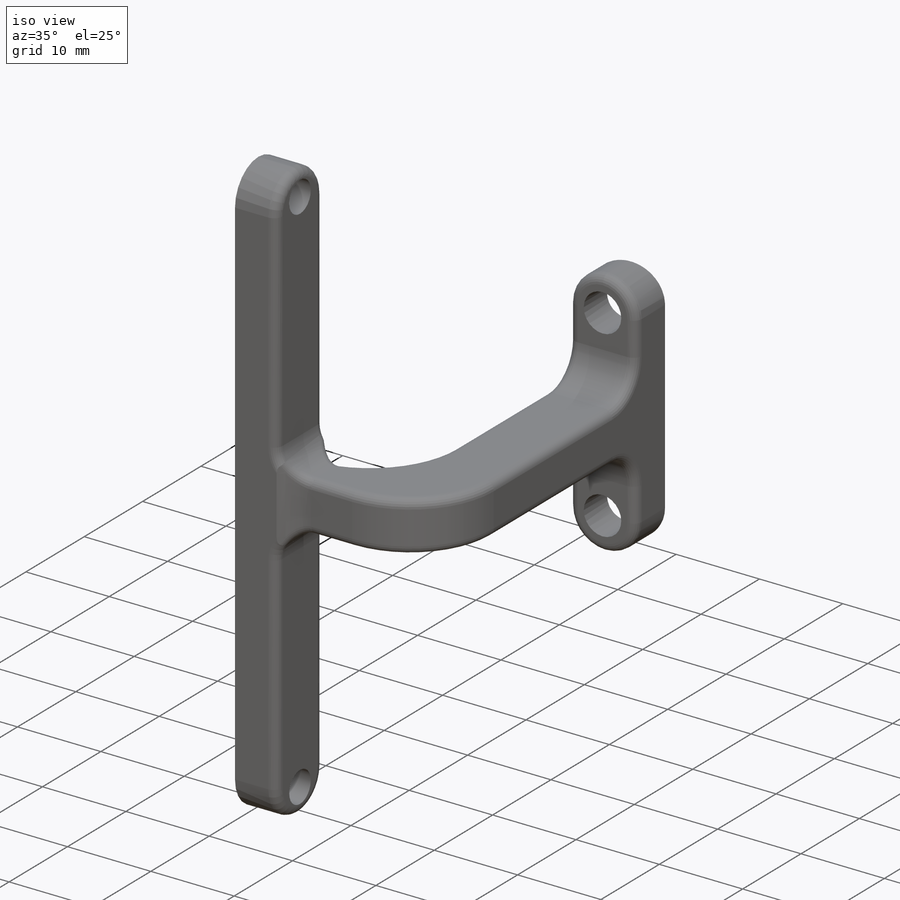
[diagram: iso view]
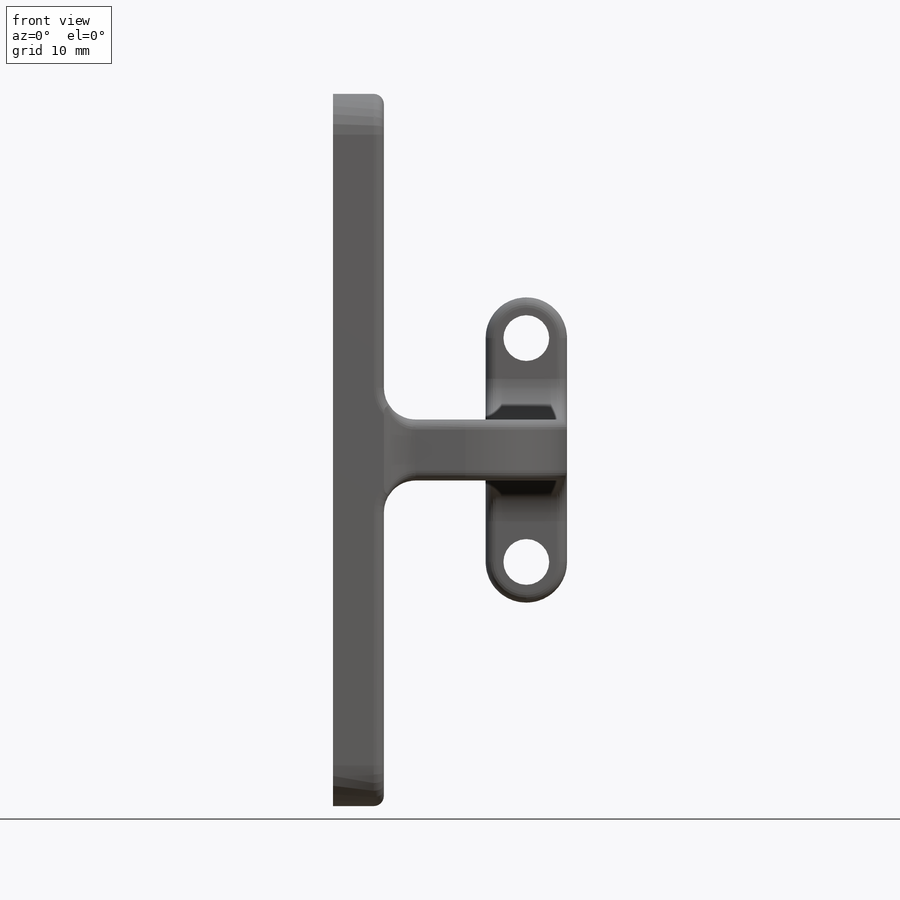
[diagram: front view]
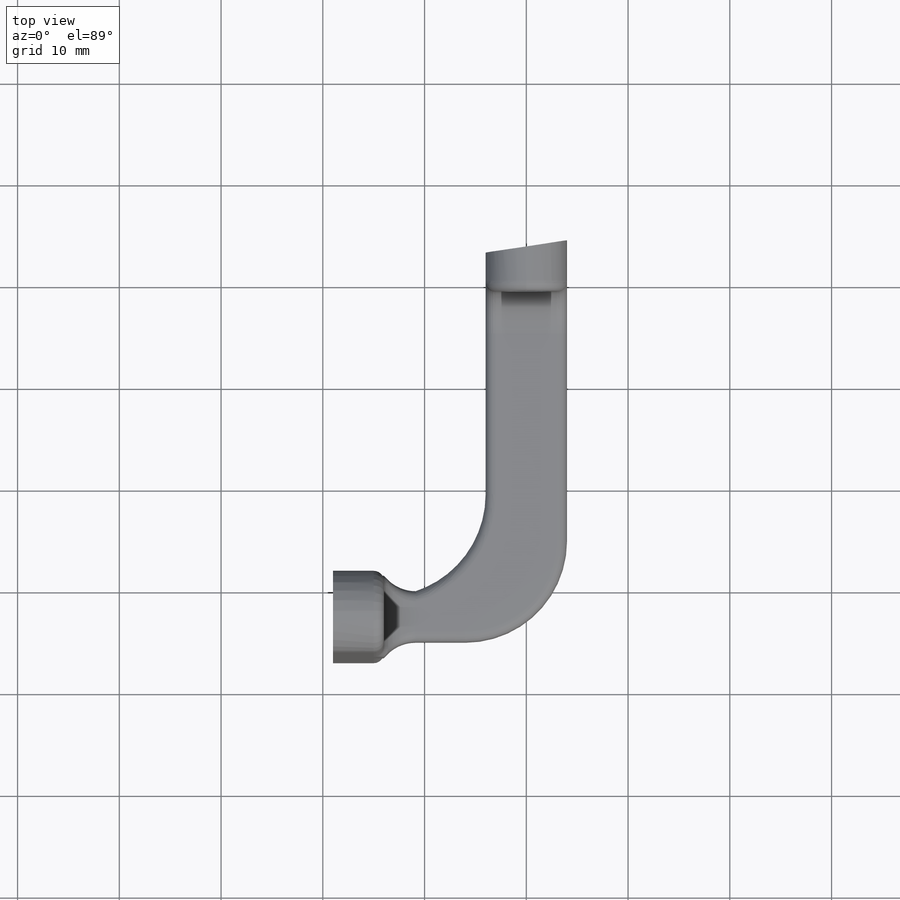
[diagram: top view]
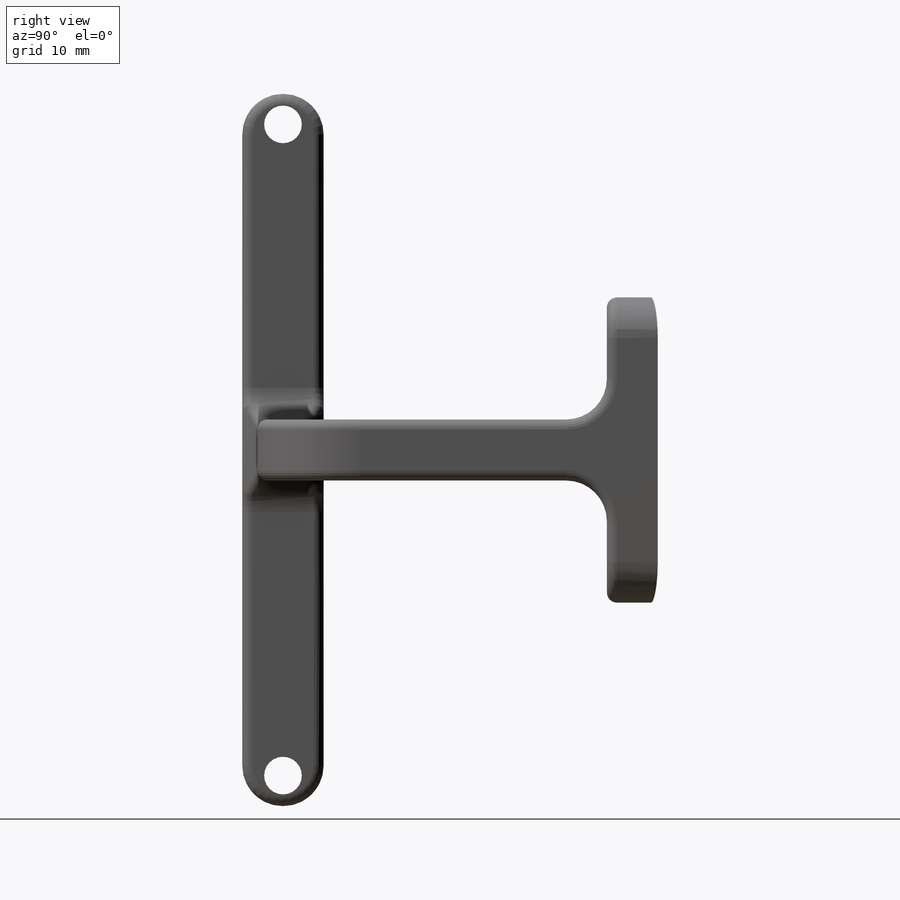
[diagram: right view]
SOLIDWORKS PART (.sldprt)
format: sldprt  version: not decoded by parser v0  size: 487,424 bytes
history: native  units: mm
features: sketch x10, extrude x5, cut_extrude x5, fillet x5, material x1 (+11 scaffold rows collapsed)
feature tree (37):
  scaffold x11  (default folders/planes/origin — collapsed)
  material  "Material <not specified>"
  sketch  "Sketch1"  dims[D1=100.0mm]
  extrude  "Boss-Extrude1"  Depth=2mm
  sketch  "Sketch6"  dims[D1=3.0mm]
  extrude  "Boss-Extrude4"  Depth=100mm
  sketch  "Sketch8"
  extrude  "Boss-Extrude5"  Depth=1mm
  sketch  "Sketch9"  dims[D1=42.0mm]
  extrude  "Boss-Extrude6"  Depth=35mm
  sketch  "Sketch10"  dims[c1.D1=1.08mm c1.D2=3.7mm c2.D1=64.0mm]
  cut_extrude  "Cut-Extrude7"  Depth=10mm
  sketch  "Sketch11"  dims[c1.D4=135.0mm c1.D1=5.0mm c2.D4=133.0mm c2.D1=2.5mm c2.D2=2.5mm c2.D3=8.0mm]
  extrude  "Boss-Extrude7"  [1 undecoded]
  sketch  "Sketch13"  dims[D1=3.0mm D2=3.0mm]
  cut_extrude  "Cut-Extrude8"  [1 undecoded]
  sketch  "Sketch14"
  cut_extrude  "Cut-Extrude9"  [1 undecoded]
  cut_extrude  "Cut-Extrude10"  [1 undecoded]
  sketch  "Sketch10<2>"  dims[D1=10.0mm]
  sketch  "Sketch15"  dims[D1=4.0mm]
  cut_extrude  "Cut-Extrude11"  [1 undecoded]
  fillet  "Fillet1"  Radius=4mm
  fillet  "Fillet2"  Radius=3.122mm
  fillet  "Fillet3"  Radius=4mm
  fillet  "Fillet4"  Radius=10mm
  fillet  "Fillet6"  Radius=1mm
decode coverage: 18 of 25 modeling features carry decoded parameters
note: 5 parameter values undecoded
summary: no parameter record found for 5 features
note: suppression state not decoded; provenance and decode notes live in map.json
